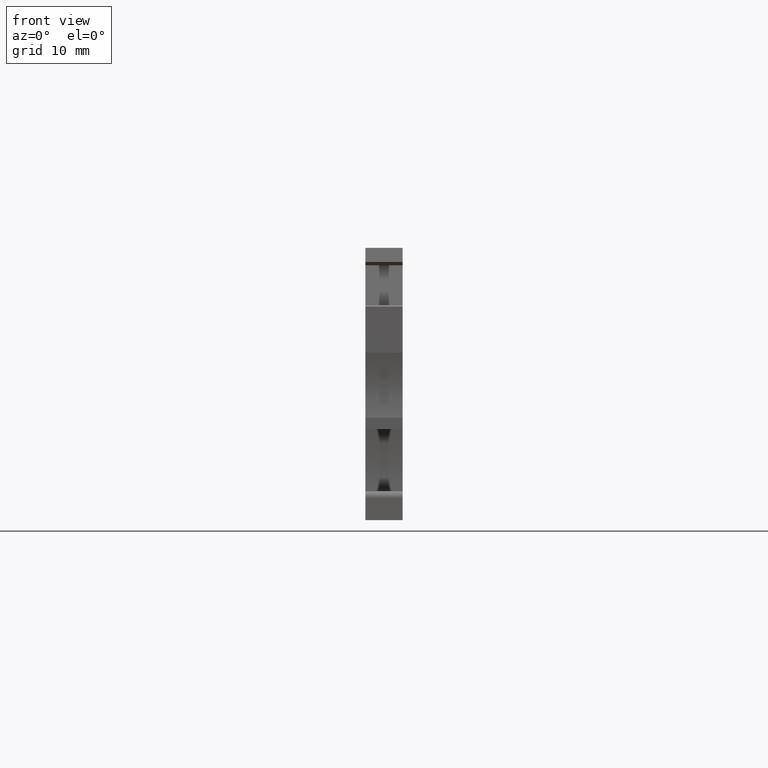
[diagram: clean part render]
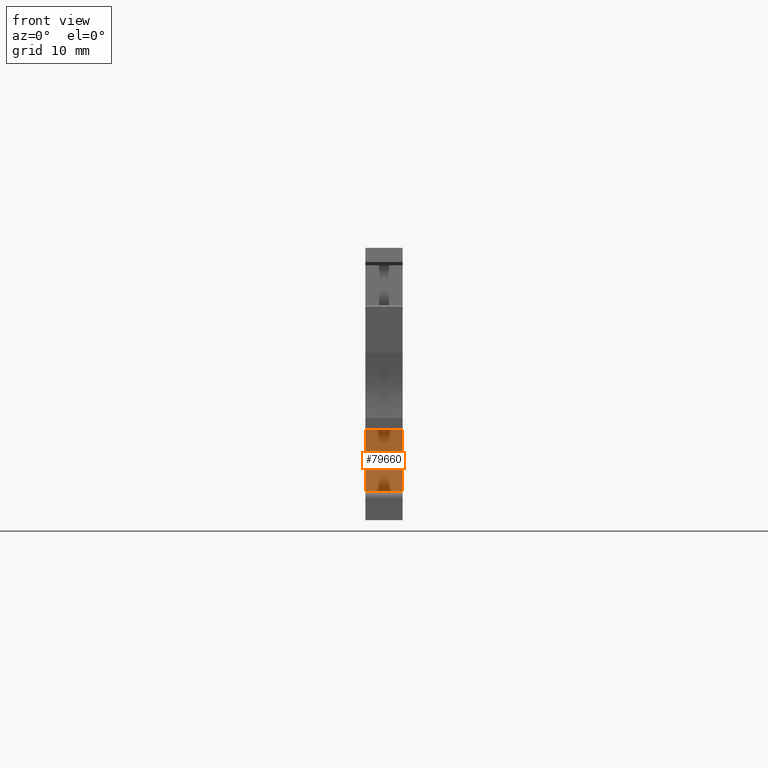
[diagram: same view with one face highlighted and labeled with its STEP entity id]
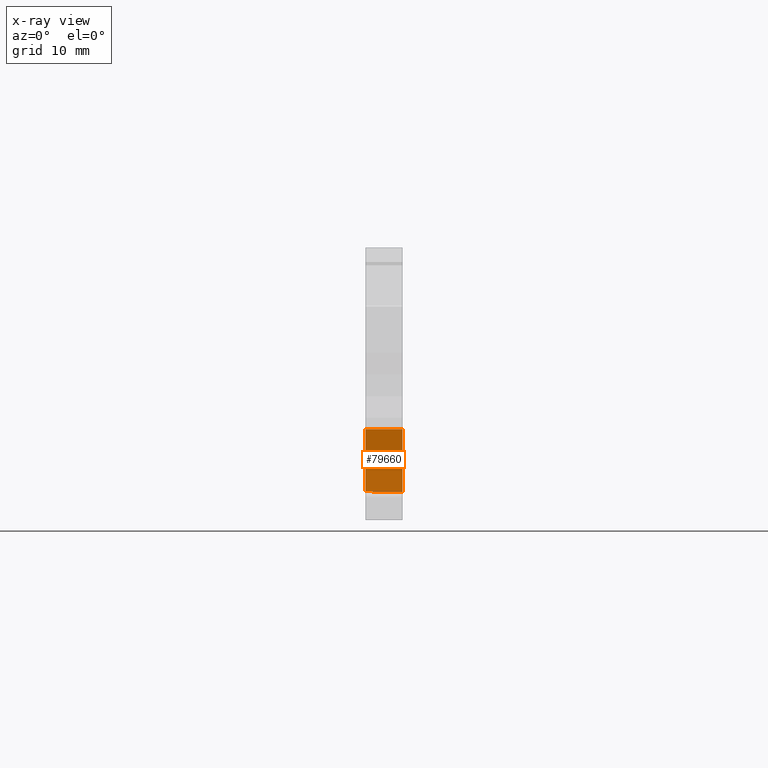
[diagram: x-ray of the same camera — body ghosted, the highlighted face saturated]
A machine part, front view. The second image highlights one B-rep face of the part: STEP entity #79660.
The next image is the same camera in x-ray: the body ghosted, the highlighted face saturated — about 0% of this face is hidden behind the body in this view.
In plain terms, the highlighted cylindrical surface (partial cylindrical patch) has radius 31.6875 mm, axis along (1, 0, -0).
Its self-contained STEP definition (entity closure, byte-faithful):
#3320=CARTESIAN_POINT('',(-6.62294368102037,-3.09806607680905,
9.53655886496568E-11));
#3330=VERTEX_POINT('',#3320);
#3360=CARTESIAN_POINT('',(-38.3066176594314,-2.60566433329599,
1.11540349027558E-10));
#3370=DIRECTION('',(5.11484905320667E-13,6.28767212301405E-14,1.));
#3380=DIRECTION('',(0.992546151641322,0.121869343405148,
-5.15335119130525E-13));
#3390=AXIS2_PLACEMENT_3D('',#3360,#3370,#3380);
#3400=CIRCLE('',#3390,31.6874999999566);
#3410=CARTESIAN_POINT('',(-7.68320696864443,5.53708544246458,
9.53649473020849E-11));
#3420=VERTEX_POINT('',#3410);
#3430=EDGE_CURVE('',#3330,#3420,#3400,.T.);
#11920=CARTESIAN_POINT('',(-7.68320696864706,5.53708544246425,
-5.1500000000981));
#11930=VERTEX_POINT('',#11920);
#11960=CARTESIAN_POINT('',(-38.306617659434,-2.60566433329631,
-5.15000000008192));
#11970=DIRECTION('',(5.11484905320667E-13,6.28767212301405E-14,1.));
#11980=DIRECTION('',(0.992546151641322,0.121869343405148,
-5.15335119130525E-13));
#11990=AXIS2_PLACEMENT_3D('',#11960,#11970,#11980);
#12000=CIRCLE('',#11990,31.6874999999566);
#12010=CARTESIAN_POINT('',(-6.62153597596458,-2.99714224981679,
-5.1500000000981));
#12020=VERTEX_POINT('',#12010);
#12030=EDGE_CURVE('',#12020,#11930,#12000,.T.);
#79280=CARTESIAN_POINT('',(-38.306617659434,-2.60566433329631,
-5.15000000002259));
#79290=DIRECTION('',(5.11484905320667E-13,6.28767212301405E-14,1.));
#79300=DIRECTION('',(0.992546151641322,0.121869343405148,
-5.15335119130526E-13));
#79310=AXIS2_PLACEMENT_3D('',#79280,#79290,#79300);
#79320=CYLINDRICAL_SURFACE('',#79310,31.6874999999566);
#79330=CARTESIAN_POINT('',(-7.68320696864707,5.53708544246426,
-5.15000000003877));
#79340=DIRECTION('',(-5.11484905320667E-13,-6.28767212301405E-14,-1.));
#79350=VECTOR('',#79340,1.);
#79360=LINE('',#79330,#79350);
#79370=EDGE_CURVE('',#3420,#11930,#79360,.T.);
#79380=ORIENTED_EDGE('',*,*,#79370,.T.);
#79390=ORIENTED_EDGE('',*,*,#3430,.T.);
#79400=CARTESIAN_POINT('',(-6.62294368102301,-3.09806607680924,
-5.15000000003877));
#79410=DIRECTION('',(-5.11484905320667E-13,-6.28767212301405E-14,-1.));
#79420=VECTOR('',#79410,1.);
#79430=LINE('',#79400,#79420);
#79440=CARTESIAN_POINT('',(-6.6229436810225,-3.09806607680889,
-4.15000000003876));
#79450=VERTEX_POINT('',#79440);
#79460=EDGE_CURVE('',#3330,#79450,#79430,.T.);
#79470=ORIENTED_EDGE('',*,*,#79460,.F.);
#79480=CARTESIAN_POINT('',(-38.3066176594335,-2.60566433329625,
-4.15000000002259));
#79490=DIRECTION('',(5.11484905320667E-13,6.28767212301405E-14,1.));
#79500=DIRECTION('',(0.992546151641322,0.121869343405148,
-5.15335119130525E-13));
#79510=AXIS2_PLACEMENT_3D('',#79480,#79490,#79500);
#79520=CIRCLE('',#79510,31.6874999999566);
#79530=CARTESIAN_POINT('',(-6.62153597596408,-2.99714224981673,
-4.15000000003877));
#79540=VERTEX_POINT('',#79530);
#79550=EDGE_CURVE('',#79450,#79540,#79520,.T.);
#79560=ORIENTED_EDGE('',*,*,#79550,.F.);
#79570=CARTESIAN_POINT('',(-6.62153597596458,-2.99714224981679,
-5.15000000003878));
#79580=DIRECTION('',(-5.11484905320667E-13,-6.28767212301405E-14,-1.));
#79590=VECTOR('',#79580,1.);
#79600=LINE('',#79570,#79590);
#79610=EDGE_CURVE('',#79540,#12020,#79600,.T.);
#79620=ORIENTED_EDGE('',*,*,#79610,.F.);
#79630=ORIENTED_EDGE('',*,*,#12030,.F.);
#79640=EDGE_LOOP('',(#79630,#79620,#79560,#79470,#79390,#79380));
#79650=FACE_OUTER_BOUND('',#79640,.T.);
#79660=ADVANCED_FACE('',(#79650),#79320,.F.);